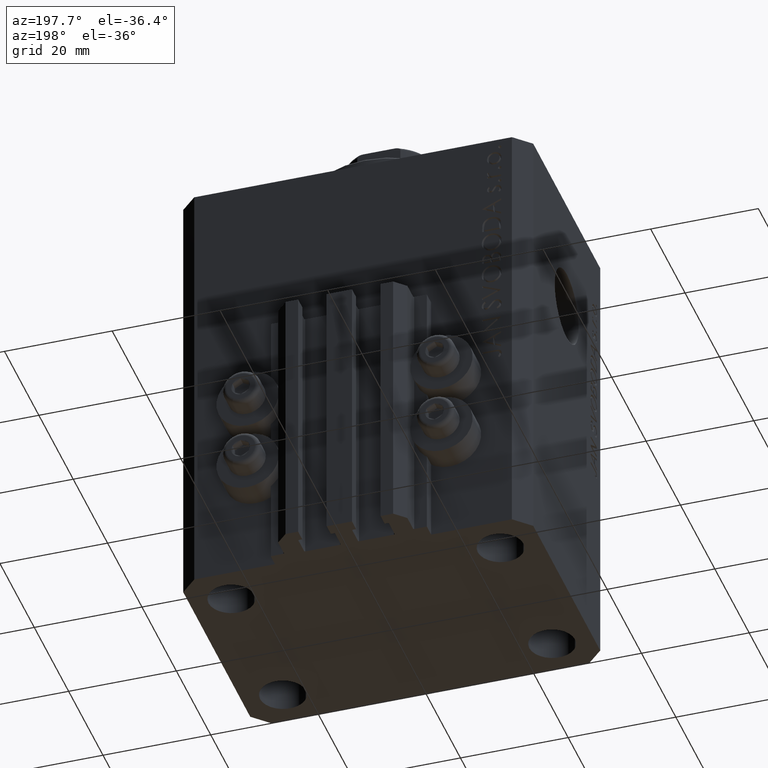
[diagram: clean part render]
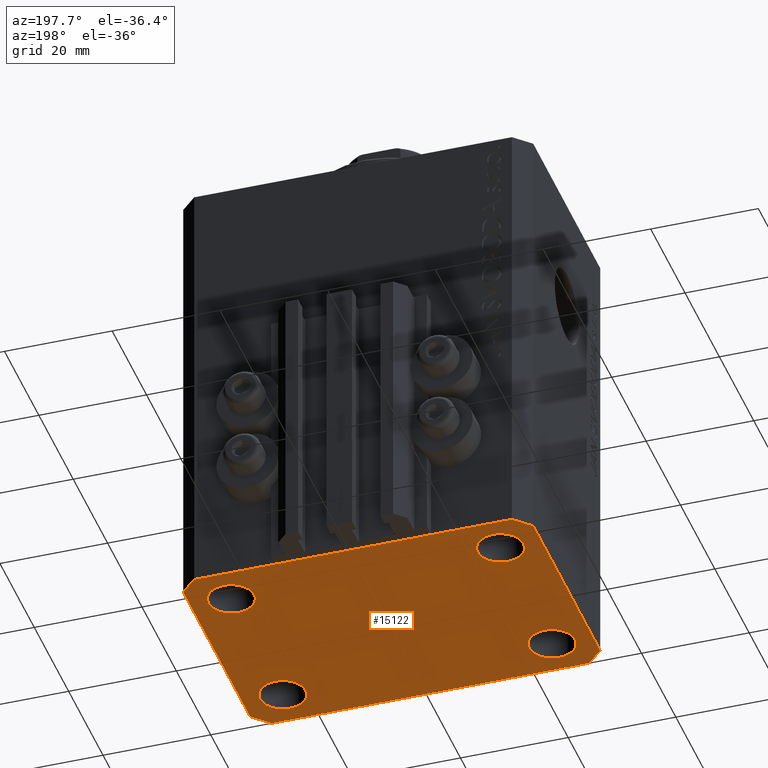
[diagram: same view with one face highlighted and labeled with its STEP entity id]
A machine part, auxiliary view. The second image highlights one B-rep face of the part: STEP entity #15122.
In plain terms, the highlighted planar face has unit normal (0, 0, 1).
Its self-contained STEP definition (entity closure, byte-faithful):
#31 = CARTESIAN_POINT ( 'NONE',  ( -20.74999999997862687, 14.99999999999999645, -84.00000000000000000 ) ) ;
#60 = FACE_BOUND ( 'NONE', #9385, .T. ) ;
#186 = EDGE_CURVE ( 'NONE', #29731, #28910, #1115, .T. ) ;
#571 = CIRCLE ( 'NONE', #31778, 4.250000000040370374 ) ;
#596 = CARTESIAN_POINT ( 'NONE',  ( -25.00000000000000000, 14.99999999999999645, -84.00000000000000000 ) ) ;
#640 = ORIENTED_EDGE ( 'NONE', *, *, #186, .F. ) ;
#802 = AXIS2_PLACEMENT_3D ( 'NONE', #26410, #44783, #8760 ) ;
#1115 = CIRCLE ( 'NONE', #40738, 4.249999999976314058 ) ;
#1660 = LINE ( 'NONE', #15984, #39979 ) ;
#1729 = LINE ( 'NONE', #8428, #22582 ) ;
#2169 = EDGE_CURVE ( 'NONE', #47171, #21984, #11875, .T. ) ;
#2330 = ORIENTED_EDGE ( 'NONE', *, *, #32056, .F. ) ;
#2523 = EDGE_CURVE ( 'NONE', #37728, #40449, #571, .T. ) ;
#2544 = LINE ( 'NONE', #41460, #16763 ) ;
#4799 = VERTEX_POINT ( 'NONE', #43155 ) ;
#4859 = DIRECTION ( 'NONE',  ( 1.000000000000000000, 0.000000000000000000, 0.000000000000000000 ) ) ;
#6124 = DIRECTION ( 'NONE',  ( -0.7071067811865474617, -0.7071067811865474617, 0.000000000000000000 ) ) ;
#6401 = AXIS2_PLACEMENT_3D ( 'NONE', #11704, #22646, #44615 ) ;
#7755 = DIRECTION ( 'NONE',  ( 1.000000000000000000, 0.000000000000000000, 0.000000000000000000 ) ) ;
#8054 = DIRECTION ( 'NONE',  ( 1.334402673828349134E-14, 1.000000000000000000, 0.000000000000000000 ) ) ;
#8428 = CARTESIAN_POINT ( 'NONE',  ( -32.49999999999650413, 19.49999999999949907, -84.00000000000000000 ) ) ;
#8760 = DIRECTION ( 'NONE',  ( 1.000000000000000000, 0.000000000000000000, 0.000000000000000000 ) ) ;
#9058 = VECTOR ( 'NONE', #16640, 1000.000000000000000 ) ;
#9385 = EDGE_LOOP ( 'NONE', ( #26465, #25570 ) ) ;
#9452 = CARTESIAN_POINT ( 'NONE',  ( 32.49999999999651124, -19.49999999999949196, -84.00000000000000000 ) ) ;
#9583 = VERTEX_POINT ( 'NONE', #26087 ) ;
#10130 = DIRECTION ( 'NONE',  ( 1.000000000000000000, 0.000000000000000000, 0.000000000000000000 ) ) ;
#10653 = CARTESIAN_POINT ( 'NONE',  ( 32.49999999999702993, 19.49999999999945999, -84.00000000000000000 ) ) ;
#10841 = CARTESIAN_POINT ( 'NONE',  ( 20.75000000004271072, 14.99999999999999289, -84.00000000000000000 ) ) ;
#10889 = DIRECTION ( 'NONE',  ( -0.7071067811865344721, 0.7071067811865606734, 0.000000000000000000 ) ) ;
#11049 = CARTESIAN_POINT ( 'NONE',  ( 29.49999999999707967, 22.49999999999952038, -84.00000000000000000 ) ) ;
#11383 = EDGE_CURVE ( 'NONE', #34022, #25141, #12119, .T. ) ;
#11704 = CARTESIAN_POINT ( 'NONE',  ( -25.00000000000000000, 14.99999999999999645, -84.00000000000000000 ) ) ;
#11875 = LINE ( 'NONE', #15460, #37894 ) ;
#12119 = CIRCLE ( 'NONE', #18202, 4.249999999957291053 ) ;
#12416 = DIRECTION ( 'NONE',  ( 0.7071067811865474617, -0.7071067811865474617, 0.000000000000000000 ) ) ;
#12807 = CARTESIAN_POINT ( 'NONE',  ( -29.49999999999650413, 22.49999999999949907, -84.00000000000000000 ) ) ;
#13046 = CARTESIAN_POINT ( 'NONE',  ( -20.74999999995962341, -15.00000000000000355, -84.00000000000000000 ) ) ;
#13455 = AXIS2_PLACEMENT_3D ( 'NONE', #16646, #16412, #24491 ) ;
#13559 = VECTOR ( 'NONE', #10889, 1000.000000000000000 ) ;
#15122 = ADVANCED_FACE ( 'NONE', ( #60, #15325, #40380, #37024, #39673 ), #33450, .F. ) ;
#15325 = FACE_BOUND ( 'NONE', #27726, .T. ) ;
#15389 = DIRECTION ( 'NONE',  ( -0.000000000000000000, -0.000000000000000000, -1.000000000000000000 ) ) ;
#15460 = CARTESIAN_POINT ( 'NONE',  ( 32.49999999999651124, -19.49999999999949196, -84.00000000000000000 ) ) ;
#15603 = ORIENTED_EDGE ( 'NONE', *, *, #26802, .F. ) ;
#15633 = EDGE_LOOP ( 'NONE', ( #23388, #35304 ) ) ;
#15984 = CARTESIAN_POINT ( 'NONE',  ( -29.49999999999650413, -22.49999999999949907, -84.00000000000000000 ) ) ;
#16116 = VERTEX_POINT ( 'NONE', #11049 ) ;
#16266 = CARTESIAN_POINT ( 'NONE',  ( 29.24999999997631051, -15.00000000000000355, -84.00000000000000000 ) ) ;
#16368 = DIRECTION ( 'NONE',  ( 1.000000000000000000, 0.000000000000000000, 0.000000000000000000 ) ) ;
#16412 = DIRECTION ( 'NONE',  ( -0.000000000000000000, -0.000000000000000000, -1.000000000000000000 ) ) ;
#16437 = DIRECTION ( 'NONE',  ( 1.000000000000000000, 1.176083712526788232E-16, 0.000000000000000000 ) ) ;
#16550 = EDGE_CURVE ( 'NONE', #25427, #9583, #23907, .T. ) ;
#16600 = ORIENTED_EDGE ( 'NONE', *, *, #25233, .F. ) ;
#16640 = DIRECTION ( 'NONE',  ( -1.000000000000000000, -3.528251137580330676E-16, 0.000000000000000000 ) ) ;
#16646 = CARTESIAN_POINT ( 'NONE',  ( 24.99999999999999289, -15.00000000000000355, -84.00000000000000000 ) ) ;
#16763 = VECTOR ( 'NONE', #6124, 1000.000000000000114 ) ;
#17364 = EDGE_CURVE ( 'NONE', #4799, #36924, #1660, .T. ) ;
#18202 = AXIS2_PLACEMENT_3D ( 'NONE', #41143, #22989, #4859 ) ;
#18888 = CARTESIAN_POINT ( 'NONE',  ( 0.000000000000000000, 0.000000000000000000, -84.00000000000000000 ) ) ;
#19146 = DIRECTION ( 'NONE',  ( 0.7071067811865483499, 0.7071067811865466846, 0.000000000000000000 ) ) ;
#19648 = VECTOR ( 'NONE', #19146, 1000.000000000000000 ) ;
#19971 = LINE ( 'NONE', #34299, #9058 ) ;
#20104 = AXIS2_PLACEMENT_3D ( 'NONE', #18888, #36304, #40621 ) ;
#21984 = VERTEX_POINT ( 'NONE', #32956 ) ;
#22582 = VECTOR ( 'NONE', #23417, 1000.000000000000000 ) ;
#22618 = CIRCLE ( 'NONE', #13455, 4.249999999976314058 ) ;
#22646 = DIRECTION ( 'NONE',  ( -0.000000000000000000, -0.000000000000000000, -1.000000000000000000 ) ) ;
#22758 = ORIENTED_EDGE ( 'NONE', *, *, #27652, .F. ) ;
#22989 = DIRECTION ( 'NONE',  ( -0.000000000000000000, -0.000000000000000000, -1.000000000000000000 ) ) ;
#23388 = ORIENTED_EDGE ( 'NONE', *, *, #11383, .F. ) ;
#23417 = DIRECTION ( 'NONE',  ( 0.000000000000000000, -1.000000000000000000, 0.000000000000000000 ) ) ;
#23864 = CARTESIAN_POINT ( 'NONE',  ( 20.75000000002367884, -15.00000000000000355, -84.00000000000000000 ) ) ;
#23904 = ORIENTED_EDGE ( 'NONE', *, *, #30509, .F. ) ;
#23907 = CIRCLE ( 'NONE', #6401, 4.250000000021375790 ) ;
#24491 = DIRECTION ( 'NONE',  ( 1.000000000000000000, 0.000000000000000000, 0.000000000000000000 ) ) ;
#24545 = ORIENTED_EDGE ( 'NONE', *, *, #34878, .F. ) ;
#24696 = CARTESIAN_POINT ( 'NONE',  ( -24.99999999999999289, -15.00000000000000355, -84.00000000000000000 ) ) ;
#25141 = VERTEX_POINT ( 'NONE', #10841 ) ;
#25233 = EDGE_CURVE ( 'NONE', #32182, #38985, #1729, .T. ) ;
#25427 = VERTEX_POINT ( 'NONE', #31 ) ;
#25570 = ORIENTED_EDGE ( 'NONE', *, *, #2523, .F. ) ;
#25841 = CARTESIAN_POINT ( 'NONE',  ( 29.49999999999650413, -22.49999999999949196, -84.00000000000000000 ) ) ;
#26048 = EDGE_LOOP ( 'NONE', ( #2330, #23904, #31769, #29150, #39951, #43424, #16600, #24545 ) ) ;
#26087 = CARTESIAN_POINT ( 'NONE',  ( -29.25000000002137668, 14.99999999999999645, -84.00000000000000000 ) ) ;
#26410 = CARTESIAN_POINT ( 'NONE',  ( -24.99999999999999289, -15.00000000000000355, -84.00000000000000000 ) ) ;
#26465 = ORIENTED_EDGE ( 'NONE', *, *, #39598, .F. ) ;
#26802 = EDGE_CURVE ( 'NONE', #28910, #29731, #22618, .T. ) ;
#27314 = CARTESIAN_POINT ( 'NONE',  ( 25.00000000000000000, 14.99999999999999289, -84.00000000000000000 ) ) ;
#27652 = EDGE_CURVE ( 'NONE', #9583, #25427, #43235, .T. ) ;
#27726 = EDGE_LOOP ( 'NONE', ( #640, #15603 ) ) ;
#28910 = VERTEX_POINT ( 'NONE', #23864 ) ;
#29150 = ORIENTED_EDGE ( 'NONE', *, *, #30848, .F. ) ;
#29531 = CIRCLE ( 'NONE', #40239, 4.249999999957291053 ) ;
#29671 = CARTESIAN_POINT ( 'NONE',  ( -29.25000000004036593, -15.00000000000000355, -84.00000000000000000 ) ) ;
#29731 = VERTEX_POINT ( 'NONE', #16266 ) ;
#30308 = LINE ( 'NONE', #34123, #32053 ) ;
#30509 = EDGE_CURVE ( 'NONE', #21984, #16116, #43566, .T. ) ;
#30848 = EDGE_CURVE ( 'NONE', #36924, #47171, #43975, .T. ) ;
#31267 = CIRCLE ( 'NONE', #802, 4.250000000040370374 ) ;
#31769 = ORIENTED_EDGE ( 'NONE', *, *, #2169, .F. ) ;
#31778 = AXIS2_PLACEMENT_3D ( 'NONE', #24696, #46194, #39043 ) ;
#31811 = CARTESIAN_POINT ( 'NONE',  ( 29.24999999995729283, 14.99999999999999289, -84.00000000000000000 ) ) ;
#32053 = VECTOR ( 'NONE', #12416, 1000.000000000000114 ) ;
#32056 = EDGE_CURVE ( 'NONE', #16116, #35645, #19971, .T. ) ;
#32182 = VERTEX_POINT ( 'NONE', #35706 ) ;
#32956 = CARTESIAN_POINT ( 'NONE',  ( 32.49999999999702993, 19.49999999999945999, -84.00000000000000000 ) ) ;
#33450 = PLANE ( 'NONE',  #20104 ) ;
#34022 = VERTEX_POINT ( 'NONE', #31811 ) ;
#34123 = CARTESIAN_POINT ( 'NONE',  ( -32.49999999999650413, -19.49999999999949907, -84.00000000000000000 ) ) ;
#34299 = CARTESIAN_POINT ( 'NONE',  ( 29.49999999999707967, 22.49999999999952038, -84.00000000000000000 ) ) ;
#34494 = DIRECTION ( 'NONE',  ( -0.000000000000000000, -0.000000000000000000, -1.000000000000000000 ) ) ;
#34878 = EDGE_CURVE ( 'NONE', #35645, #32182, #2544, .T. ) ;
#35304 = ORIENTED_EDGE ( 'NONE', *, *, #44048, .F. ) ;
#35645 = VERTEX_POINT ( 'NONE', #12807 ) ;
#35706 = CARTESIAN_POINT ( 'NONE',  ( -32.49999999999650413, 19.49999999999949907, -84.00000000000000000 ) ) ;
#36304 = DIRECTION ( 'NONE',  ( 0.000000000000000000, 0.000000000000000000, 1.000000000000000000 ) ) ;
#36343 = AXIS2_PLACEMENT_3D ( 'NONE', #596, #15389, #7755 ) ;
#36924 = VERTEX_POINT ( 'NONE', #37578 ) ;
#37024 = FACE_BOUND ( 'NONE', #42832, .T. ) ;
#37578 = CARTESIAN_POINT ( 'NONE',  ( 29.49999999999650413, -22.49999999999949196, -84.00000000000000000 ) ) ;
#37728 = VERTEX_POINT ( 'NONE', #29671 ) ;
#37894 = VECTOR ( 'NONE', #8054, 1000.000000000000000 ) ;
#38081 = EDGE_CURVE ( 'NONE', #38985, #4799, #30308, .T. ) ;
#38985 = VERTEX_POINT ( 'NONE', #44494 ) ;
#39004 = DIRECTION ( 'NONE',  ( -0.000000000000000000, -0.000000000000000000, -1.000000000000000000 ) ) ;
#39043 = DIRECTION ( 'NONE',  ( 1.000000000000000000, 0.000000000000000000, 0.000000000000000000 ) ) ;
#39598 = EDGE_CURVE ( 'NONE', #40449, #37728, #31267, .T. ) ;
#39673 = FACE_OUTER_BOUND ( 'NONE', #26048, .T. ) ;
#39951 = ORIENTED_EDGE ( 'NONE', *, *, #17364, .F. ) ;
#39979 = VECTOR ( 'NONE', #16437, 1000.000000000000000 ) ;
#40239 = AXIS2_PLACEMENT_3D ( 'NONE', #27314, #39004, #10130 ) ;
#40380 = FACE_BOUND ( 'NONE', #15633, .T. ) ;
#40449 = VERTEX_POINT ( 'NONE', #13046 ) ;
#40621 = DIRECTION ( 'NONE',  ( 1.000000000000000000, 0.000000000000000000, -0.000000000000000000 ) ) ;
#40738 = AXIS2_PLACEMENT_3D ( 'NONE', #40798, #34494, #16368 ) ;
#40798 = CARTESIAN_POINT ( 'NONE',  ( 24.99999999999999289, -15.00000000000000355, -84.00000000000000000 ) ) ;
#41143 = CARTESIAN_POINT ( 'NONE',  ( 25.00000000000000000, 14.99999999999999289, -84.00000000000000000 ) ) ;
#41460 = CARTESIAN_POINT ( 'NONE',  ( -29.49999999999650413, 22.49999999999949907, -84.00000000000000000 ) ) ;
#42832 = EDGE_LOOP ( 'NONE', ( #45947, #22758 ) ) ;
#43155 = CARTESIAN_POINT ( 'NONE',  ( -29.49999999999650413, -22.49999999999949907, -84.00000000000000000 ) ) ;
#43235 = CIRCLE ( 'NONE', #36343, 4.250000000021375790 ) ;
#43424 = ORIENTED_EDGE ( 'NONE', *, *, #38081, .F. ) ;
#43566 = LINE ( 'NONE', #10653, #13559 ) ;
#43975 = LINE ( 'NONE', #25841, #19648 ) ;
#44048 = EDGE_CURVE ( 'NONE', #25141, #34022, #29531, .T. ) ;
#44494 = CARTESIAN_POINT ( 'NONE',  ( -32.49999999999650413, -19.49999999999949907, -84.00000000000000000 ) ) ;
#44615 = DIRECTION ( 'NONE',  ( 1.000000000000000000, 0.000000000000000000, 0.000000000000000000 ) ) ;
#44783 = DIRECTION ( 'NONE',  ( -0.000000000000000000, -0.000000000000000000, -1.000000000000000000 ) ) ;
#45947 = ORIENTED_EDGE ( 'NONE', *, *, #16550, .F. ) ;
#46194 = DIRECTION ( 'NONE',  ( -0.000000000000000000, -0.000000000000000000, -1.000000000000000000 ) ) ;
#47171 = VERTEX_POINT ( 'NONE', #9452 ) ;